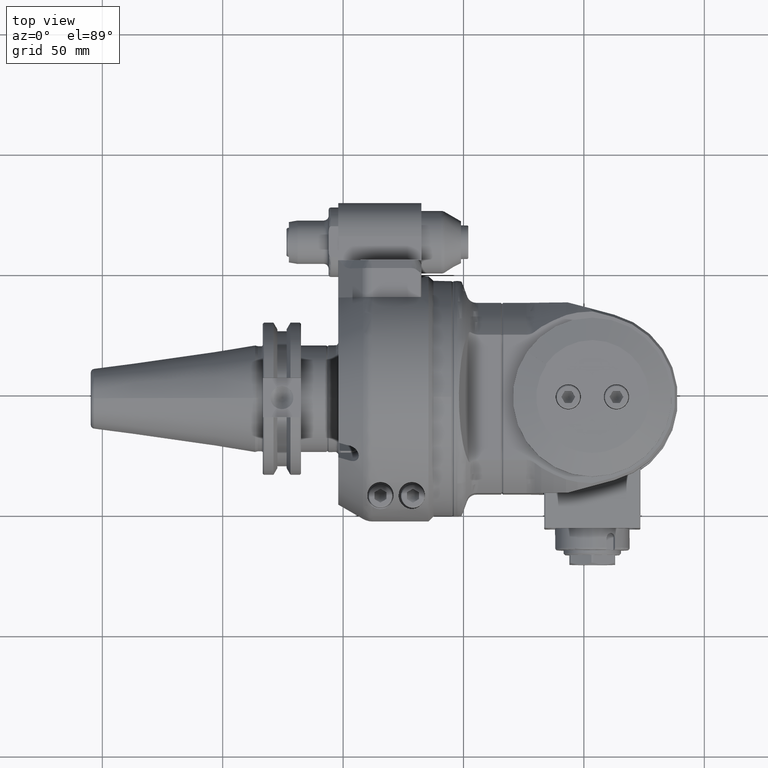
[diagram: clean part render]
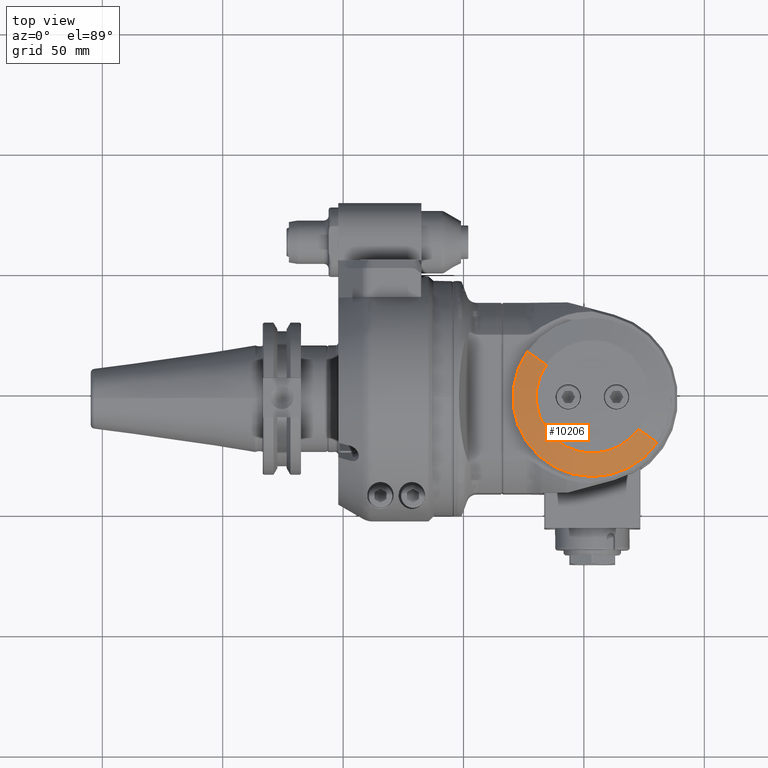
[diagram: same view with one face highlighted and labeled with its STEP entity id]
A machine part, top view. The second image highlights one B-rep face of the part: STEP entity #10206.
In plain terms, the highlighted conical surface has half-angle 75 deg.
Its self-contained STEP definition (entity closure, byte-faithful):
#291=CONICAL_SURFACE('',#11034,28.14175132528,1.30899693899575);
#583=CIRCLE('',#10990,33.);
#586=CIRCLE('',#10995,23.28350265056);
#1123=FACE_OUTER_BOUND('',#1780,.T.);
#1780=EDGE_LOOP('',(#7542,#7543,#7544,#7545));
#2469=LINE('',#16129,#3186);
#2502=LINE('',#16284,#3219);
#3186=VECTOR('',#12570,10.0592582628896);
#3219=VECTOR('',#12683,10.0592582628896);
#4345=VERTEX_POINT('',#16117);
#4346=VERTEX_POINT('',#16119);
#4349=VERTEX_POINT('',#16126);
#4351=VERTEX_POINT('',#16132);
#5491=EDGE_CURVE('',#4345,#4346,#583,.T.);
#5496=EDGE_CURVE('',#4349,#4346,#2469,.T.);
#5499=EDGE_CURVE('',#4349,#4351,#586,.T.);
#5557=EDGE_CURVE('',#4351,#4345,#2502,.T.);
#7542=ORIENTED_EDGE('',*,*,#5491,.F.);
#7543=ORIENTED_EDGE('',*,*,#5557,.F.);
#7544=ORIENTED_EDGE('',*,*,#5499,.F.);
#7545=ORIENTED_EDGE('',*,*,#5496,.T.);
#10206=ADVANCED_FACE('',(#1123),#291,.T.);
#10990=AXIS2_PLACEMENT_3D('',#16120,#12561,#12562);
#10995=AXIS2_PLACEMENT_3D('',#16135,#12576,#12577);
#11034=AXIS2_PLACEMENT_3D('',#16286,#12686,#12687);
#12561=DIRECTION('center_axis',(-1.,0.,0.));
#12562=DIRECTION('ref_axis',(0.,0.,1.));
#12570=DIRECTION('',(-0.25881904510251,0.79124011523623,-0.554032293222321));
#12576=DIRECTION('center_axis',(1.,0.,0.));
#12577=DIRECTION('ref_axis',(0.,0.819152044289016,-0.573576436351011));
#12683=DIRECTION('',(-0.25881904510251,-0.79124011523623,0.554032293222321));
#12686=DIRECTION('center_axis',(-1.,0.,0.));
#12687=DIRECTION('ref_axis',(0.,0.819152044289016,-0.573576436351011));
#16117=CARTESIAN_POINT('',(38.8964723819601,-27.03201746154,18.9280223996));
#16119=CARTESIAN_POINT('',(38.8964723819601,27.03201746154,-18.92802239958));
#16120=CARTESIAN_POINT('Origin',(38.8964723819601,0.,0.));
#16126=CARTESIAN_POINT('',(41.5000000000001,19.07272879442,-13.35486847608));
#16129=CARTESIAN_POINT('',(41.5000000000001,19.07272879442,-13.35486847608));
#16132=CARTESIAN_POINT('',(41.5000000000001,-19.07272879442,13.3548684761));
#16135=CARTESIAN_POINT('Origin',(41.5000000000001,0.,0.));
#16284=CARTESIAN_POINT('',(41.5000000000001,-19.07272879442,13.3548684761));
#16286=CARTESIAN_POINT('Origin',(40.1982361909801,0.,0.));